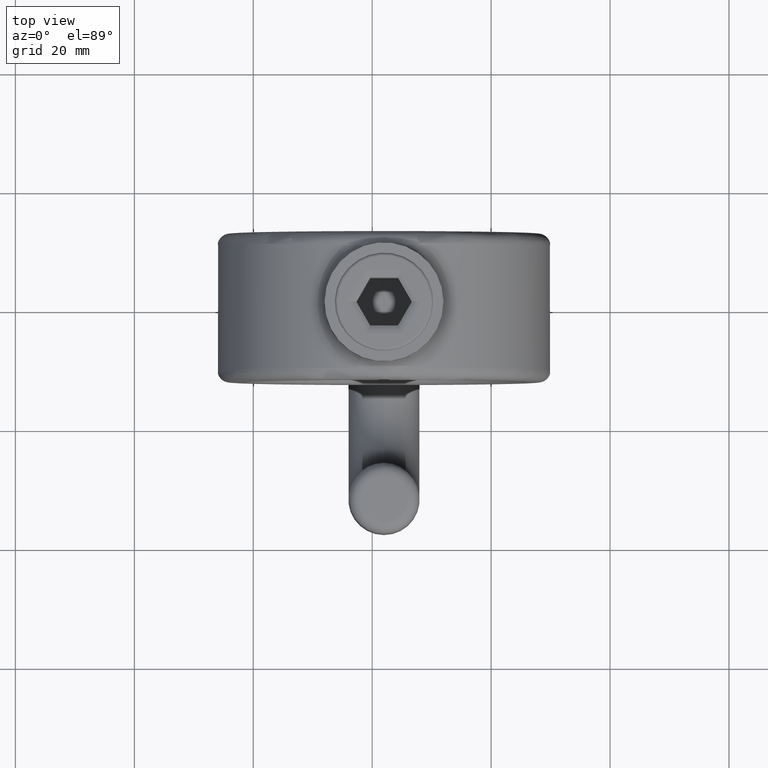
[diagram: clean part render]
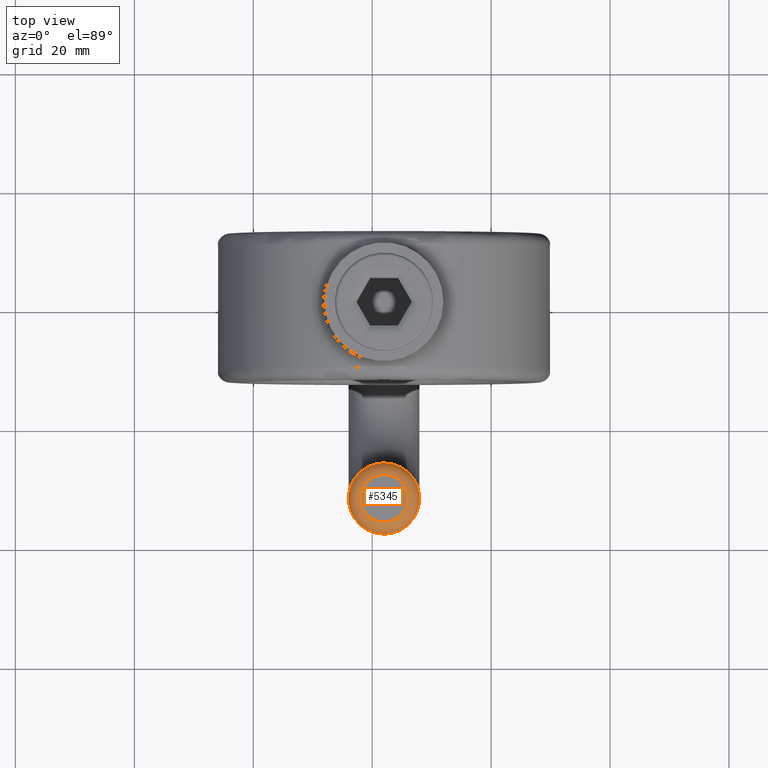
[diagram: same view with one face highlighted and labeled with its STEP entity id]
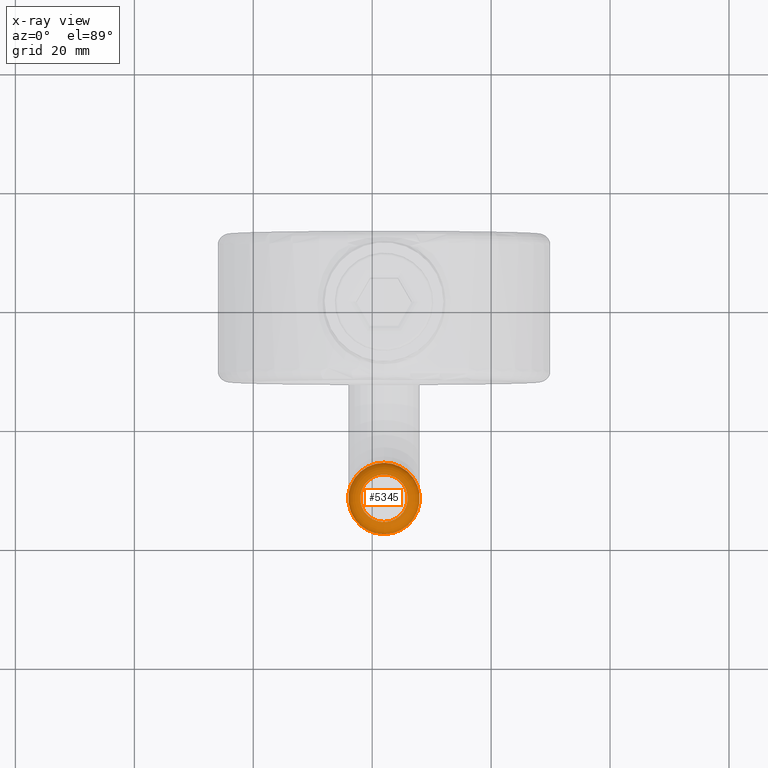
[diagram: x-ray of the same camera — body ghosted, the highlighted face saturated]
A machine part, top view. The second image highlights one B-rep face of the part: STEP entity #5345.
The next image is the same camera in x-ray: the body ghosted, the highlighted face saturated — about 0% of this face is hidden behind the body in this view.
In plain terms, the highlighted toroidal blend (fillet) surface has major radius 4 mm and minor (blend) radius 2 mm.
Its self-contained STEP definition (entity closure, byte-faithful):
#552 = EDGE_LOOP ( 'NONE', ( #5171 ) ) ;
#1818 = AXIS2_PLACEMENT_3D ( 'NONE', #10101, #4564, #3516 ) ;
#2485 = AXIS2_PLACEMENT_3D ( 'NONE', #11230, #5523, #4827 ) ;
#2766 = EDGE_LOOP ( 'NONE', ( #10962 ) ) ;
#2956 = CIRCLE ( 'NONE', #5151, 4.000000000000000000 ) ;
#3516 = DIRECTION ( 'NONE',  ( 0.000000000000000000, 1.000000000000000000, 3.154042683594196107E-16 ) ) ;
#3891 = DIRECTION ( 'NONE',  ( -0.000000000000000000, -3.154042683594196107E-16, 1.000000000000000000 ) ) ;
#4047 = DIRECTION ( 'NONE',  ( 0.000000000000000000, 1.000000000000000000, 0.000000000000000000 ) ) ;
#4564 = DIRECTION ( 'NONE',  ( 0.000000000000000000, 3.154042683594196107E-16, -1.000000000000000000 ) ) ;
#4827 = DIRECTION ( 'NONE',  ( 0.000000000000000000, 1.000000000000000000, 5.782411586589355667E-16 ) ) ;
#5151 = AXIS2_PLACEMENT_3D ( 'NONE', #6891, #3891, #4047 ) ;
#5171 = ORIENTED_EDGE ( 'NONE', *, *, #8748, .F. ) ;
#5345 = ADVANCED_FACE ( 'NONE', ( #5568, #10344 ), #10488, .T. ) ;
#5523 = DIRECTION ( 'NONE',  ( 0.000000000000000000, 3.154042683594196107E-16, -1.000000000000000000 ) ) ;
#5568 = FACE_OUTER_BOUND ( 'NONE', #2766, .T. ) ;
#6891 = CARTESIAN_POINT ( 'NONE',  ( 0.000000000000000000, -19.00000000000000355, -28.00000000000000000 ) ) ;
#7869 = VERTEX_POINT ( 'NONE', #9368 ) ;
#8748 = EDGE_CURVE ( 'NONE', #7869, #7869, #12044, .T. ) ;
#9278 = CARTESIAN_POINT ( 'NONE',  ( 0.000000000000000000, -15.00000000000000355, -28.00000000000000000 ) ) ;
#9368 = CARTESIAN_POINT ( 'NONE',  ( 0.000000000000000000, -13.00000000000000178, -29.99999999999999645 ) ) ;
#9822 = VERTEX_POINT ( 'NONE', #9278 ) ;
#10101 = CARTESIAN_POINT ( 'NONE',  ( 0.000000000000000000, -19.00000000000000355, -30.00000000000000000 ) ) ;
#10344 = FACE_OUTER_BOUND ( 'NONE', #552, .T. ) ;
#10488 = TOROIDAL_SURFACE ( 'NONE', #1818, 4.000000000000000888, 2.000000000000000000 ) ;
#10962 = ORIENTED_EDGE ( 'NONE', *, *, #11623, .F. ) ;
#11230 = CARTESIAN_POINT ( 'NONE',  ( 0.000000000000000000, -19.00000000000000355, -30.00000000000000000 ) ) ;
#11623 = EDGE_CURVE ( 'NONE', #9822, #9822, #2956, .T. ) ;
#12044 = CIRCLE ( 'NONE', #2485, 6.000000000000001776 ) ;